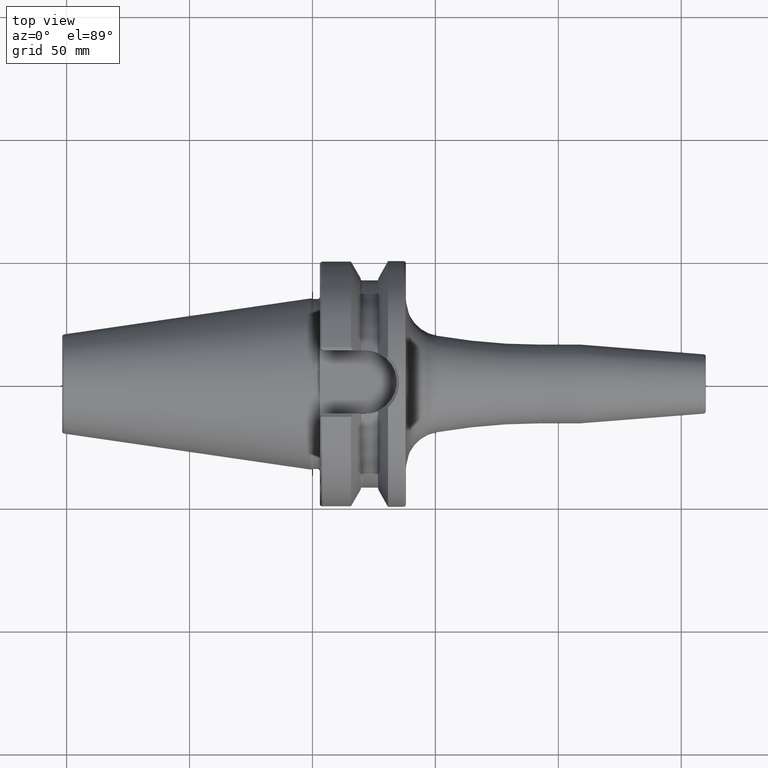
[diagram: clean part render]
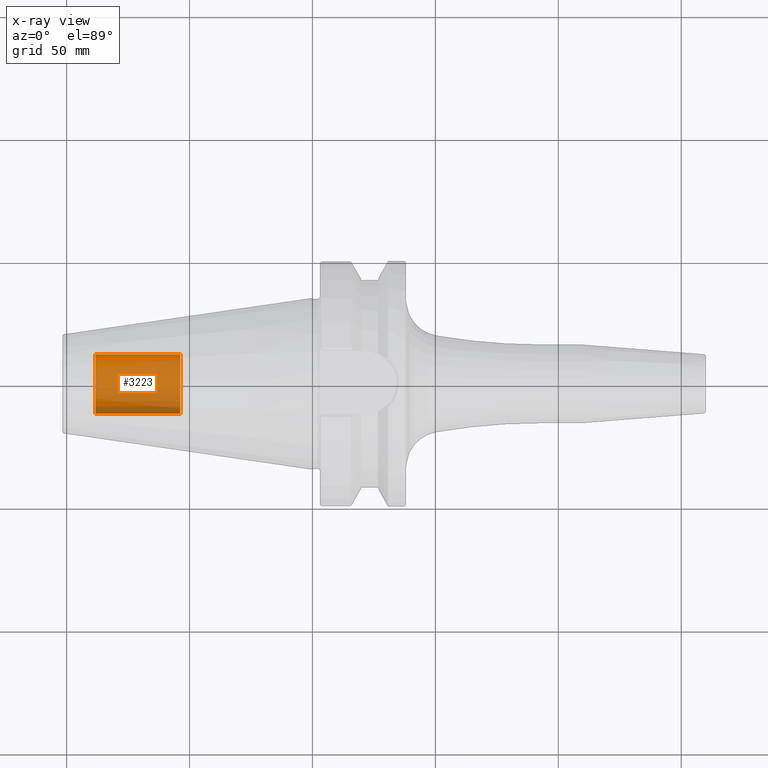
[diagram: x-ray — body ghosted, one internal face saturated and labeled with its STEP entity id]
A machine part, top view, then the same camera in x-ray: the body is ghosted and one INTERNAL B-rep face — a face not visible from any outside direction — is saturated and labeled: STEP entity #3223.
In plain terms, the highlighted cylindrical surface (edge-blend (fillet) strip) has radius 12.0032 mm, axis along (1, 0, 0).
Its self-contained STEP definition (entity closure, byte-faithful):
#3158=CARTESIAN_POINT('',(-8.835E1,0.E0,0.E0));
#3159=DIRECTION('',(-1.E0,0.E0,0.E0));
#3160=DIRECTION('',(0.E0,1.E0,0.E0));
#3161=AXIS2_PLACEMENT_3D('',#3158,#3159,#3160);
#3163=DIRECTION('',(1.E0,0.E0,0.E0));
#3164=VECTOR('',#3163,3.455E1);
#3165=CARTESIAN_POINT('',(-8.835E1,-1.200325E1,0.E0));
#3166=LINE('',#3165,#3164);
#3172=DIRECTION('',(1.E0,0.E0,0.E0));
#3173=VECTOR('',#3172,3.455E1);
#3174=CARTESIAN_POINT('',(-8.835E1,1.200325E1,0.E0));
#3175=LINE('',#3174,#3173);
#3181=CARTESIAN_POINT('',(-5.38E1,0.E0,0.E0));
#3182=DIRECTION('',(1.E0,0.E0,0.E0));
#3183=DIRECTION('',(0.E0,-1.E0,0.E0));
#3184=AXIS2_PLACEMENT_3D('',#3181,#3182,#3183);
#3196=CARTESIAN_POINT('',(-8.835E1,1.200325E1,0.E0));
#3197=CARTESIAN_POINT('',(-8.835E1,-1.200325E1,0.E0));
#3198=VERTEX_POINT('',#3196);
#3199=VERTEX_POINT('',#3197);
#3200=CARTESIAN_POINT('',(-5.38E1,1.200325E1,0.E0));
#3201=CARTESIAN_POINT('',(-5.38E1,-1.200325E1,0.E0));
#3202=VERTEX_POINT('',#3200);
#3203=VERTEX_POINT('',#3201);
#3208=CARTESIAN_POINT('',(-8.835E1,0.E0,0.E0));
#3209=DIRECTION('',(1.E0,0.E0,0.E0));
#3210=DIRECTION('',(0.E0,1.E0,0.E0));
#3211=AXIS2_PLACEMENT_3D('',#3208,#3209,#3210);
#3212=CYLINDRICAL_SURFACE('',#3211,1.200325E1);
#3214=ORIENTED_EDGE('',*,*,#3213,.T.);
#3216=ORIENTED_EDGE('',*,*,#3215,.T.);
#3218=ORIENTED_EDGE('',*,*,#3217,.T.);
#3220=ORIENTED_EDGE('',*,*,#3219,.F.);
#3221=EDGE_LOOP('',(#3214,#3216,#3218,#3220));
#3222=FACE_OUTER_BOUND('',#3221,.F.);
#3223=ADVANCED_FACE('',(#3222),#3212,.T.);
#3162=CIRCLE('',#3161,1.200325E1);
#3185=CIRCLE('',#3184,1.200325E1);
#3213=EDGE_CURVE('',#3198,#3199,#3162,.T.);
#3215=EDGE_CURVE('',#3199,#3203,#3166,.T.);
#3217=EDGE_CURVE('',#3203,#3202,#3185,.T.);
#3219=EDGE_CURVE('',#3198,#3202,#3175,.T.);